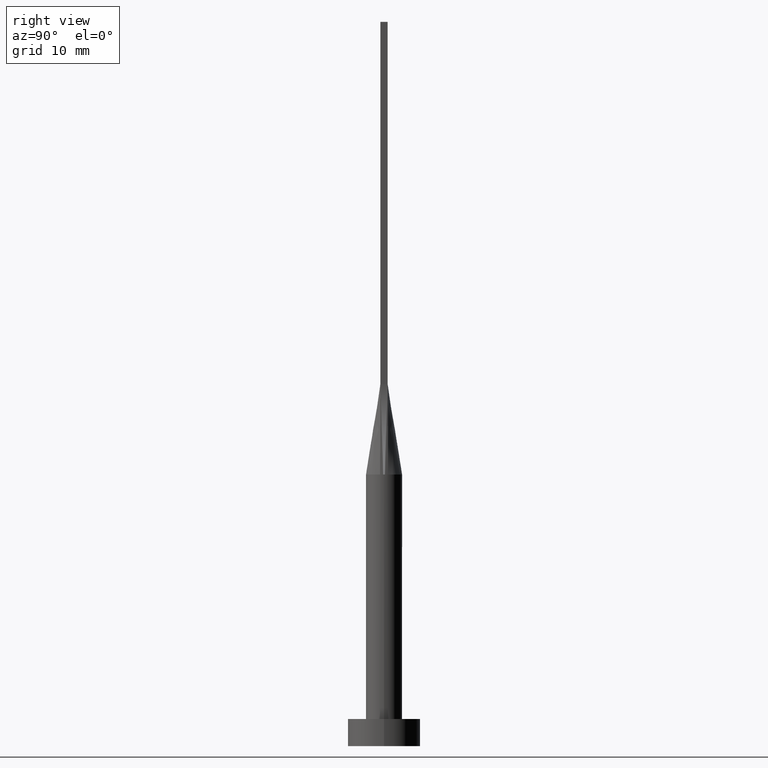
[diagram: clean part render]
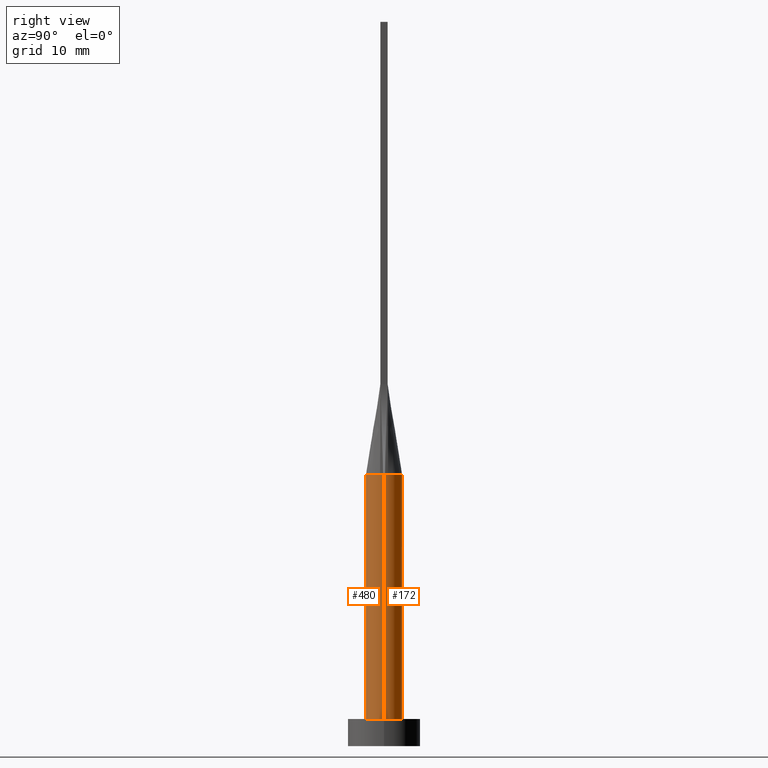
[diagram: same view with one multi-face feature highlighted, each face labeled with its STEP entity id]
A machine part, right view. The highlighted faces form ONE feature: a constant-radius fillet chain: 2 tangent blend faces with common blend radius 2 mm. The faces share edges in the B-rep.
Their STEP definitions:
[1] entity #172 (Cylinder):
#2 = CARTESIAN_POINT ( 'NONE',  ( -1.949896596863728293, 0.4456908869437610776, 30.00000000000000000 ) ) ;
#5 = ORIENTED_EDGE ( 'NONE', *, *, #350, .F. ) ;
#16 = CARTESIAN_POINT ( 'NONE',  ( 0.000000000000000000, 0.000000000000000000, 30.00000000000000000 ) ) ;
#24 = EDGE_CURVE ( 'NONE', #323, #356, #30, .T. ) ;
#28 = ORIENTED_EDGE ( 'NONE', *, *, #528, .T. ) ;
#30 = LINE ( 'NONE', #302, #47 ) ;
#35 = CARTESIAN_POINT ( 'NONE',  ( 1.669156890509896352, 1.119033439449084177, 29.99999999999999645 ) ) ;
#47 = VECTOR ( 'NONE', #467, 1000.000000000000000 ) ;
#60 = LINE ( 'NONE', #109, #195 ) ;
#66 = CYLINDRICAL_SURFACE ( 'NONE', #502, 2.000000000000000000 ) ;
#71 = VERTEX_POINT ( 'NONE', #421 ) ;
#79 = DIRECTION ( 'NONE',  ( 0.000000000000000000, 0.000000000000000000, 1.000000000000000000 ) ) ;
#83 = CARTESIAN_POINT ( 'NONE',  ( 1.002818635501954603, 1.749193953526918088, 30.00000000000000000 ) ) ;
#92 = CARTESIAN_POINT ( 'NONE',  ( -1.949896596863728293, 0.4456908869437610776, 30.00000000000000000 ) ) ;
#109 = CARTESIAN_POINT ( 'NONE',  ( 2.000000000000000000, 2.449293598294706414E-16, 30.00000000000000000 ) ) ;
#110 = CARTESIAN_POINT ( 'NONE',  ( 0.000000000000000000, 0.000000000000000000, 30.00000000000000000 ) ) ;
#129 = CARTESIAN_POINT ( 'NONE',  ( 1.209404336647714073, 1.609323485403446830, 30.00000000000001066 ) ) ;
#144 = EDGE_CURVE ( 'NONE', #423, #323, #452, .T. ) ;
#156 = CARTESIAN_POINT ( 'NONE',  ( 1.949877516600953875, 0.4456865912299994847, 30.00000000000000000 ) ) ;
#169 = CARTESIAN_POINT ( 'NONE',  ( -0.2657394870669756437, 1.999999999999999556, 30.00000000000000000 ) ) ;
#172 = ADVANCED_FACE ( 'NONE', ( #291 ), #66, .T. ) ;
#173 = CARTESIAN_POINT ( 'NONE',  ( -1.002818635501954381, 1.749193953526918532, 30.00000000000000000 ) ) ;
#177 = CARTESIAN_POINT ( 'NONE',  ( 1.949877516600953875, 0.4456865912299994847, 30.00000000000000000 ) ) ;
#180 = CIRCLE ( 'NONE', #182, 2.000000000000000000 ) ;
#182 = AXIS2_PLACEMENT_3D ( 'NONE', #562, #461, #419 ) ;
#184 = EDGE_CURVE ( 'NONE', #519, #550, #180, .T. ) ;
#186 = ORIENTED_EDGE ( 'NONE', *, *, #144, .F. ) ;
#195 = VECTOR ( 'NONE', #244, 1000.000000000000000 ) ;
#212 = AXIS2_PLACEMENT_3D ( 'NONE', #110, #513, #426 ) ;
#216 = CARTESIAN_POINT ( 'NONE',  ( -1.542259513637947999, 1.293837904363075442, 30.00000000000000355 ) ) ;
#225 = ORIENTED_EDGE ( 'NONE', *, *, #184, .F. ) ;
#230 = B_SPLINE_CURVE_WITH_KNOTS ( 'NONE', 3,
 ( #177, #439, #573, #35, #347, #129, #83, #383, #570, #169, #299, #173, #475, #216, #387, #443, #278, #92 ),
 .UNSPECIFIED., .F., .F.,
 ( 4, 2, 2, 2, 2, 2, 2, 2, 4 ),
 ( 0.000000000000000000, 0.1250000000000000000, 0.2500000000000000000, 0.3750000000000000000, 0.5000000000000000000, 0.6250000000000000000, 0.7500000000000000000, 0.8750000000000000000, 1.000000000000000000 ),
 .UNSPECIFIED. ) ;
#244 = DIRECTION ( 'NONE',  ( -0.000000000000000000, -0.000000000000000000, -1.000000000000000000 ) ) ;
#245 = DIRECTION ( 'NONE',  ( -0.000000000000000000, -0.000000000000000000, -1.000000000000000000 ) ) ;
#278 = CARTESIAN_POINT ( 'NONE',  ( -1.913513237607142647, 0.6040411209768712375, 30.00000000000000355 ) ) ;
#290 = ORIENTED_EDGE ( 'NONE', *, *, #324, .T. ) ;
#291 = FACE_OUTER_BOUND ( 'NONE', #581, .T. ) ;
#299 = CARTESIAN_POINT ( 'NONE',  ( -0.5307032259479420588, 1.945168061822314609, 30.00000000000000000 ) ) ;
#302 = CARTESIAN_POINT ( 'NONE',  ( -2.000000000000000000, 0.000000000000000000, 30.00000000000000000 ) ) ;
#305 = DIRECTION ( 'NONE',  ( 1.000000000000000000, 0.000000000000000000, 0.000000000000000000 ) ) ;
#315 = CIRCLE ( 'NONE', #504, 2.000000000000000000 ) ;
#323 = VERTEX_POINT ( 'NONE', #392 ) ;
#324 = EDGE_CURVE ( 'NONE', #71, #356, #315, .T. ) ;
#331 = CARTESIAN_POINT ( 'NONE',  ( 1.999683952654101260, 4.637163118916083254E-16, 30.00000000000000000 ) ) ;
#347 = CARTESIAN_POINT ( 'NONE',  ( 1.542259513637948443, 1.293837904363074998, 30.00000000000000711 ) ) ;
#350 = EDGE_CURVE ( 'NONE', #550, #423, #230, .T. ) ;
#356 = VERTEX_POINT ( 'NONE', #578 ) ;
#379 = DIRECTION ( 'NONE',  ( -1.000000000000000000, 0.000000000000000000, 0.000000000000000000 ) ) ;
#383 = CARTESIAN_POINT ( 'NONE',  ( 0.5307032259479425029, 1.945168061822314165, 30.00000000000000000 ) ) ;
#387 = CARTESIAN_POINT ( 'NONE',  ( -1.669156890509896796, 1.119033439449084399, 30.00000000000000000 ) ) ;
#392 = CARTESIAN_POINT ( 'NONE',  ( -1.999683952654101704, -4.787247324473225831E-16, 30.00000000000000000 ) ) ;
#419 = DIRECTION ( 'NONE',  ( 1.000000000000000000, 0.000000000000000000, 0.000000000000000000 ) ) ;
#421 = CARTESIAN_POINT ( 'NONE',  ( 2.000000000000000000, 2.449293598294706414E-16, 3.000000000000000000 ) ) ;
#423 = VERTEX_POINT ( 'NONE', #2 ) ;
#426 = DIRECTION ( 'NONE',  ( 1.000000000000000000, 0.000000000000000000, 0.000000000000000000 ) ) ;
#436 = ORIENTED_EDGE ( 'NONE', *, *, #24, .F. ) ;
#439 = CARTESIAN_POINT ( 'NONE',  ( 1.913513237607142647, 0.6040411209768705714, 30.00000000000000000 ) ) ;
#443 = CARTESIAN_POINT ( 'NONE',  ( -1.854458107241758746, 0.7741483657718513101, 30.00000000000000000 ) ) ;
#452 = CIRCLE ( 'NONE', #212, 2.000000000000000000 ) ;
#461 = DIRECTION ( 'NONE',  ( 0.000000000000000000, 0.000000000000000000, 1.000000000000000000 ) ) ;
#467 = DIRECTION ( 'NONE',  ( -0.000000000000000000, -0.000000000000000000, -1.000000000000000000 ) ) ;
#475 = CARTESIAN_POINT ( 'NONE',  ( -1.209404336647713851, 1.609323485403446830, 30.00000000000000355 ) ) ;
#479 = CARTESIAN_POINT ( 'NONE',  ( 0.000000000000000000, 0.000000000000000000, 3.000000000000000000 ) ) ;
#502 = AXIS2_PLACEMENT_3D ( 'NONE', #16, #245, #379 ) ;
#504 = AXIS2_PLACEMENT_3D ( 'NONE', #479, #79, #305 ) ;
#513 = DIRECTION ( 'NONE',  ( 0.000000000000000000, 0.000000000000000000, 1.000000000000000000 ) ) ;
#519 = VERTEX_POINT ( 'NONE', #331 ) ;
#528 = EDGE_CURVE ( 'NONE', #519, #71, #60, .T. ) ;
#550 = VERTEX_POINT ( 'NONE', #156 ) ;
#562 = CARTESIAN_POINT ( 'NONE',  ( 0.000000000000000000, 0.000000000000000000, 30.00000000000000000 ) ) ;
#570 = CARTESIAN_POINT ( 'NONE',  ( 0.2657394870669761988, 1.999999999999999556, 30.00000000000000000 ) ) ;
#573 = CARTESIAN_POINT ( 'NONE',  ( 1.854458107241759190, 0.7741483657718509770, 30.00000000000000355 ) ) ;
#578 = CARTESIAN_POINT ( 'NONE',  ( -2.000000000000000000, 0.000000000000000000, 3.000000000000000000 ) ) ;
#581 = EDGE_LOOP ( 'NONE', ( #225, #28, #290, #436, #186, #5 ) ) ;
[2] entity #480 (Cylinder):
#7 = AXIS2_PLACEMENT_3D ( 'NONE', #482, #574, #221 ) ;
#24 = EDGE_CURVE ( 'NONE', #323, #356, #30, .T. ) ;
#27 = DIRECTION ( 'NONE',  ( 0.000000000000000000, 0.000000000000000000, 1.000000000000000000 ) ) ;
#30 = LINE ( 'NONE', #302, #47 ) ;
#31 = CARTESIAN_POINT ( 'NONE',  ( 0.000000000000000000, 0.000000000000000000, 30.00000000000000000 ) ) ;
#37 = ORIENTED_EDGE ( 'NONE', *, *, #307, .F. ) ;
#47 = VECTOR ( 'NONE', #467, 1000.000000000000000 ) ;
#54 = EDGE_LOOP ( 'NONE', ( #327, #398, #37, #386, #494, #393 ) ) ;
#60 = LINE ( 'NONE', #109, #195 ) ;
#71 = VERTEX_POINT ( 'NONE', #421 ) ;
#82 = AXIS2_PLACEMENT_3D ( 'NONE', #31, #27, #210 ) ;
#98 = EDGE_CURVE ( 'NONE', #498, #519, #265, .T. ) ;
#104 = FACE_OUTER_BOUND ( 'NONE', #54, .T. ) ;
#109 = CARTESIAN_POINT ( 'NONE',  ( 2.000000000000000000, 2.449293598294706414E-16, 30.00000000000000000 ) ) ;
#124 = CARTESIAN_POINT ( 'NONE',  ( 0.000000000000000000, 0.000000000000000000, 3.000000000000000000 ) ) ;
#170 = DIRECTION ( 'NONE',  ( 0.000000000000000000, 0.000000000000000000, 1.000000000000000000 ) ) ;
#174 = CIRCLE ( 'NONE', #353, 2.000000000000000000 ) ;
#195 = VECTOR ( 'NONE', #244, 1000.000000000000000 ) ;
#202 = DIRECTION ( 'NONE',  ( -0.000000000000000000, -0.000000000000000000, -1.000000000000000000 ) ) ;
#210 = DIRECTION ( 'NONE',  ( 1.000000000000000000, -9.769962616701377556E-15, 0.000000000000000000 ) ) ;
#221 = DIRECTION ( 'NONE',  ( 1.000000000000000000, 0.000000000000000000, 0.000000000000000000 ) ) ;
#227 = EDGE_CURVE ( 'NONE', #356, #71, #174, .T. ) ;
#244 = DIRECTION ( 'NONE',  ( -0.000000000000000000, -0.000000000000000000, -1.000000000000000000 ) ) ;
#264 = CARTESIAN_POINT ( 'NONE',  ( 0.000000000000000000, 0.000000000000000000, 30.00000000000000000 ) ) ;
#265 = CIRCLE ( 'NONE', #82, 2.000000000000000000 ) ;
#266 = AXIS2_PLACEMENT_3D ( 'NONE', #264, #481, #394 ) ;
#268 = EDGE_CURVE ( 'NONE', #323, #333, #492, .T. ) ;
#289 = CARTESIAN_POINT ( 'NONE',  ( 1.949907982895221048, -0.4456935569447296186, 30.00000000000000000 ) ) ;
#302 = CARTESIAN_POINT ( 'NONE',  ( -2.000000000000000000, 0.000000000000000000, 30.00000000000000000 ) ) ;
#307 = EDGE_CURVE ( 'NONE', #333, #498, #543, .T. ) ;
#323 = VERTEX_POINT ( 'NONE', #392 ) ;
#327 = ORIENTED_EDGE ( 'NONE', *, *, #528, .F. ) ;
#331 = CARTESIAN_POINT ( 'NONE',  ( 1.999683952654101260, 4.637163118916083254E-16, 30.00000000000000000 ) ) ;
#333 = VERTEX_POINT ( 'NONE', #529 ) ;
#353 = AXIS2_PLACEMENT_3D ( 'NONE', #124, #170, #527 ) ;
#356 = VERTEX_POINT ( 'NONE', #578 ) ;
#363 = AXIS2_PLACEMENT_3D ( 'NONE', #414, #202, #556 ) ;
#386 = ORIENTED_EDGE ( 'NONE', *, *, #268, .F. ) ;
#392 = CARTESIAN_POINT ( 'NONE',  ( -1.999683952654101704, -4.787247324473225831E-16, 30.00000000000000000 ) ) ;
#393 = ORIENTED_EDGE ( 'NONE', *, *, #227, .T. ) ;
#394 = DIRECTION ( 'NONE',  ( 1.000000000000000000, 0.000000000000000000, 0.000000000000000000 ) ) ;
#398 = ORIENTED_EDGE ( 'NONE', *, *, #98, .F. ) ;
#414 = CARTESIAN_POINT ( 'NONE',  ( 0.000000000000000000, 0.000000000000000000, 30.00000000000000000 ) ) ;
#421 = CARTESIAN_POINT ( 'NONE',  ( 2.000000000000000000, 2.449293598294706414E-16, 3.000000000000000000 ) ) ;
#467 = DIRECTION ( 'NONE',  ( -0.000000000000000000, -0.000000000000000000, -1.000000000000000000 ) ) ;
#480 = ADVANCED_FACE ( 'NONE', ( #104 ), #503, .T. ) ;
#481 = DIRECTION ( 'NONE',  ( 0.000000000000000000, 0.000000000000000000, 1.000000000000000000 ) ) ;
#482 = CARTESIAN_POINT ( 'NONE',  ( 0.000000000000000000, 0.000000000000000000, 30.00000000000000000 ) ) ;
#492 = CIRCLE ( 'NONE', #266, 2.000000000000000000 ) ;
#494 = ORIENTED_EDGE ( 'NONE', *, *, #24, .T. ) ;
#498 = VERTEX_POINT ( 'NONE', #289 ) ;
#503 = CYLINDRICAL_SURFACE ( 'NONE', #363, 2.000000000000000000 ) ;
#519 = VERTEX_POINT ( 'NONE', #331 ) ;
#527 = DIRECTION ( 'NONE',  ( 1.000000000000000000, 0.000000000000000000, 0.000000000000000000 ) ) ;
#528 = EDGE_CURVE ( 'NONE', #519, #71, #60, .T. ) ;
#529 = CARTESIAN_POINT ( 'NONE',  ( -1.949888833174281633, -0.4456892479726881628, 30.00000000000000000 ) ) ;
#543 = CIRCLE ( 'NONE', #7, 2.000000000000000000 ) ;
#556 = DIRECTION ( 'NONE',  ( -1.000000000000000000, 0.000000000000000000, 0.000000000000000000 ) ) ;
#574 = DIRECTION ( 'NONE',  ( 0.000000000000000000, 0.000000000000000000, 1.000000000000000000 ) ) ;
#578 = CARTESIAN_POINT ( 'NONE',  ( -2.000000000000000000, 0.000000000000000000, 3.000000000000000000 ) ) ;